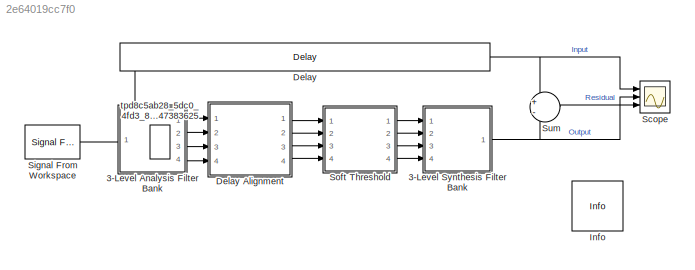
MODEL slx_2e64019cc7f0
KIND model
CONFIG AbsTol = auto
CONFIG EnableMultiTasking = off
CONFIG FixedStep = auto
CONFIG MaxStep = auto
CONFIG MinStep = auto
CONFIG RelTol = 1e-3
CONFIG SampleTimeConstraint = Unconstrained
CONFIG Solver = FixedStepDiscrete
CONFIG SolverName = FixedStepDiscrete
CONFIG StartTime = 0.0
CONFIG StopTime = 1024
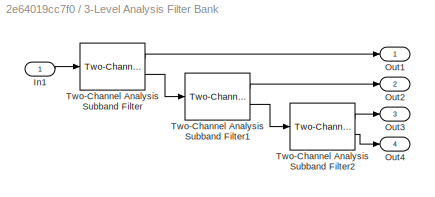
BLOCK [SubSystem] 3-Level Analysis Filter Bank
  Ports = [1, 4]
  RequestExecContextInheritance = off
  Variant = off
BLOCK [Inport] 3-Level Analysis Filter Bank/In1
  IconDisplay = Port number
BLOCK [Outport] 3-Level Analysis Filter Bank/Out1
  IconDisplay = Port number
BLOCK [Outport] 3-Level Analysis Filter Bank/Out2
  IconDisplay = Port number
  Port = 2
BLOCK [Outport] 3-Level Analysis Filter Bank/Out3
  IconDisplay = Port number
  Port = 3
BLOCK [Outport] 3-Level Analysis Filter Bank/Out4
  IconDisplay = Port number
  Port = 4
BLOCK [Reference] 3-Level Analysis Filter Bank/Two-Channel Analysis Subband Filter  REF=dspobslib/Two-Channel Analysis
Subband Filter
  Ports = [1, 2]
  SourceBlock = dspobslib/Two-Channel Analysis\nSubband Filter
  SourceType = Two-Channel Analysis Subband Filter
  UserDataPersistent = on
BLOCK [Reference] 3-Level Analysis Filter Bank/Two-Channel Analysis Subband Filter1  REF=dspobslib/Two-Channel Analysis
Subband Filter
  Ports = [1, 2]
  SourceBlock = dspobslib/Two-Channel Analysis\nSubband Filter
  SourceType = Two-Channel Analysis Subband Filter
  UserDataPersistent = on
BLOCK [Reference] 3-Level Analysis Filter Bank/Two-Channel Analysis Subband Filter2  REF=dspobslib/Two-Channel Analysis
Subband Filter
  Ports = [1, 2]
  SourceBlock = dspobslib/Two-Channel Analysis\nSubband Filter
  SourceType = Two-Channel Analysis Subband Filter
  UserDataPersistent = on
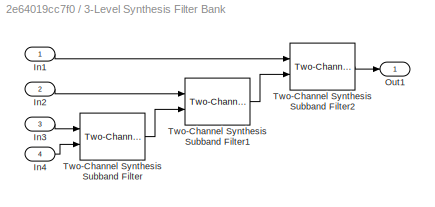
BLOCK [SubSystem] 3-Level Synthesis Filter Bank
  Ports = [4, 1]
  RequestExecContextInheritance = off
  Variant = off
BLOCK [Inport] 3-Level Synthesis Filter Bank/In1
  IconDisplay = Port number
BLOCK [Inport] 3-Level Synthesis Filter Bank/In2
  IconDisplay = Port number
  Port = 2
BLOCK [Inport] 3-Level Synthesis Filter Bank/In3
  IconDisplay = Port number
  Port = 3
BLOCK [Inport] 3-Level Synthesis Filter Bank/In4
  IconDisplay = Port number
  Port = 4
BLOCK [Outport] 3-Level Synthesis Filter Bank/Out1
  IconDisplay = Port number
BLOCK [Reference] 3-Level Synthesis Filter Bank/Two-Channel Synthesis Subband Filter  REF=dspobslib/Two-Channel Synthesis
Subband Filter
  Ports = [2, 1]
  SourceBlock = dspobslib/Two-Channel Synthesis\nSubband Filter
  SourceType = Two-Channel Synthesis Subband Filter
  UserDataPersistent = on
BLOCK [Reference] 3-Level Synthesis Filter Bank/Two-Channel Synthesis Subband Filter1  REF=dspobslib/Two-Channel Synthesis
Subband Filter
  Ports = [2, 1]
  SourceBlock = dspobslib/Two-Channel Synthesis\nSubband Filter
  SourceType = Two-Channel Synthesis Subband Filter
  UserDataPersistent = on
BLOCK [Reference] 3-Level Synthesis Filter Bank/Two-Channel Synthesis Subband Filter2  REF=dspobslib/Two-Channel Synthesis
Subband Filter
  Ports = [2, 1]
  SourceBlock = dspobslib/Two-Channel Synthesis\nSubband Filter
  SourceType = Two-Channel Synthesis Subband Filter
  UserDataPersistent = on
BLOCK [Delay] Delay
  DelayLength = 7*(length(lod)-1)
  InitialCondition = 0
  InputPortMap = u0
  InputProcessing = Columns as channels (frame based)
  Ports = [1, 1]
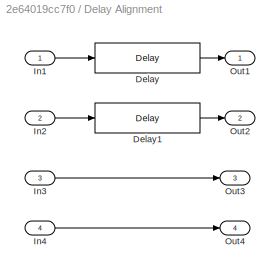
BLOCK [SubSystem] Delay Alignment
  Ports = [4, 4]
  RequestExecContextInheritance = off
  Variant = off
BLOCK [Delay] Delay Alignment/Delay
  DelayLength = 3*(length(lod)-1)
  InitialCondition = 0
  InputPortMap = u0
  InputProcessing = Columns as channels (frame based)
  Ports = [1, 1]
BLOCK [Delay] Delay Alignment/Delay1
  DelayLength = length(lod) - 1
  InitialCondition = 0
  InputPortMap = u0
  InputProcessing = Columns as channels (frame based)
  Ports = [1, 1]
BLOCK [Inport] Delay Alignment/In1
  IconDisplay = Port number
BLOCK [Inport] Delay Alignment/In2
  IconDisplay = Port number
  Port = 2
BLOCK [Inport] Delay Alignment/In3
  IconDisplay = Port number
  Port = 3
BLOCK [Inport] Delay Alignment/In4
  IconDisplay = Port number
  Port = 4
BLOCK [Outport] Delay Alignment/Out1
  IconDisplay = Port number
BLOCK [Outport] Delay Alignment/Out2
  IconDisplay = Port number
  Port = 2
BLOCK [Outport] Delay Alignment/Out3
  IconDisplay = Port number
  Port = 3
BLOCK [Outport] Delay Alignment/Out4
  IconDisplay = Port number
  Port = 4
BLOCK [Reference] Info  REF=dspmisc/Info
  Ports = []
  SourceBlock = dspmisc/Info
  SourceType = Info
BLOCK [Scope] Scope
  NumInputPorts = 3
  Ports = [3]
  ScopeSpecificationString = Simulink.scopes.TimeScopeBlockCfg('CurrentConfiguration', extmgr.ConfigurationSet(extmgr.Configuration('Core','General UI',true),extmgr.Configuration('Core','Source UI',true),extmgr.Configuration('Sources','WiredSimulink',true,'DataLoggingSaveFormat','StructureWithTime','DataLoggingLimitDataPoints',true,'DataLoggingDecimation','1','DataLoggingDecimateData',true),extmgr.Configuration('Visuals','Tim...<+5315ch>
BLOCK [Reference] Signal From Workspace  REF=dspsrcs4/Signal From
Workspace
  Ports = [0, 1]
  SourceBlock = dspsrcs4/Signal From\nWorkspace
  SourceType = Signal From Workspace
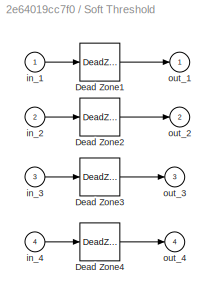
BLOCK [SubSystem] Soft Threshold
  Ports = [4, 4]
  RequestExecContextInheritance = off
  ShowPortLabels = none
  Variant = off
BLOCK [DeadZone] Soft Threshold/Dead Zone1
  LowerValue = -st(1)
  UpperValue = st(1)
  ZeroCross = off
BLOCK [DeadZone] Soft Threshold/Dead Zone2
  LowerValue = -st(2)
  UpperValue = st(2)
  ZeroCross = off
BLOCK [DeadZone] Soft Threshold/Dead Zone3
  LowerValue = -st(3)
  UpperValue = st(3)
  ZeroCross = off
BLOCK [DeadZone] Soft Threshold/Dead Zone4
  LowerValue = -st(4)
  UpperValue = st(4)
  ZeroCross = off
BLOCK [Inport] Soft Threshold/in_1
  IconDisplay = Port number
BLOCK [Inport] Soft Threshold/in_2
  IconDisplay = Port number
  Port = 2
BLOCK [Inport] Soft Threshold/in_3
  IconDisplay = Port number
  Port = 3
BLOCK [Inport] Soft Threshold/in_4
  IconDisplay = Port number
  Port = 4
BLOCK [Outport] Soft Threshold/out_1
  IconDisplay = Port number
BLOCK [Outport] Soft Threshold/out_2
  IconDisplay = Port number
  Port = 2
BLOCK [Outport] Soft Threshold/out_3
  IconDisplay = Port number
  Port = 3
BLOCK [Outport] Soft Threshold/out_4
  IconDisplay = Port number
  Port = 4
BLOCK [Sum] Sum
  IconShape = round
  Inputs = +-
  Ports = [2, 1]
BLOCK [FrameConversion] tpd8c5ab28_5dc0_4fd3_8a08_533c47383625
  InheritSamplingMode = off
  Ports = [1, 1]
LINE 3-Level Analysis Filter Bank/In1:1 -> 3-Level Analysis Filter Bank/Two-Channel Analysis Subband Filter:1
LINE 3-Level Analysis Filter Bank/Two-Channel Analysis Subband Filter1:1 -> 3-Level Analysis Filter Bank/Out2:1
LINE 3-Level Analysis Filter Bank/Two-Channel Analysis Subband Filter1:2 -> 3-Level Analysis Filter Bank/Two-Channel Analysis Subband Filter2:1
LINE 3-Level Analysis Filter Bank/Two-Channel Analysis Subband Filter2:1 -> 3-Level Analysis Filter Bank/Out3:1
LINE 3-Level Analysis Filter Bank/Two-Channel Analysis Subband Filter2:2 -> 3-Level Analysis Filter Bank/Out4:1
LINE 3-Level Analysis Filter Bank/Two-Channel Analysis Subband Filter:1 -> 3-Level Analysis Filter Bank/Out1:1
LINE 3-Level Analysis Filter Bank/Two-Channel Analysis Subband Filter:2 -> 3-Level Analysis Filter Bank/Two-Channel Analysis Subband Filter1:1
LINE 3-Level Analysis Filter Bank:1 -> Delay Alignment:1
LINE 3-Level Analysis Filter Bank:2 -> Delay Alignment:2
LINE 3-Level Analysis Filter Bank:3 -> Delay Alignment:3
LINE 3-Level Analysis Filter Bank:4 -> Delay Alignment:4
LINE 3-Level Synthesis Filter Bank/In1:1 -> 3-Level Synthesis Filter Bank/Two-Channel Synthesis Subband Filter2:1
LINE 3-Level Synthesis Filter Bank/In2:1 -> 3-Level Synthesis Filter Bank/Two-Channel Synthesis Subband Filter1:1
LINE 3-Level Synthesis Filter Bank/In3:1 -> 3-Level Synthesis Filter Bank/Two-Channel Synthesis Subband Filter:1
LINE 3-Level Synthesis Filter Bank/In4:1 -> 3-Level Synthesis Filter Bank/Two-Channel Synthesis Subband Filter:2
LINE 3-Level Synthesis Filter Bank/Two-Channel Synthesis Subband Filter1:1 -> 3-Level Synthesis Filter Bank/Two-Channel Synthesis Subband Filter2:2
LINE 3-Level Synthesis Filter Bank/Two-Channel Synthesis Subband Filter2:1 -> 3-Level Synthesis Filter Bank/Out1:1
LINE 3-Level Synthesis Filter Bank/Two-Channel Synthesis Subband Filter:1 -> 3-Level Synthesis Filter Bank/Two-Channel Synthesis Subband Filter1:2
NET 3-Level Synthesis Filter Bank:1 -> Scope:2, Sum:2
LINE Delay Alignment/Delay1:1 -> Delay Alignment/Out2:1
LINE Delay Alignment/Delay:1 -> Delay Alignment/Out1:1
LINE Delay Alignment/In1:1 -> Delay Alignment/Delay:1
LINE Delay Alignment/In2:1 -> Delay Alignment/Delay1:1
LINE Delay Alignment/In3:1 -> Delay Alignment/Out3:1
LINE Delay Alignment/In4:1 -> Delay Alignment/Out4:1
LINE Delay Alignment:1 -> Soft Threshold:1
LINE Delay Alignment:2 -> Soft Threshold:2
LINE Delay Alignment:3 -> Soft Threshold:3
LINE Delay Alignment:4 -> Soft Threshold:4
NET Delay:1 -> Scope:1, Sum:1
LINE Signal From Workspace:1 -> tpd8c5ab28_5dc0_4fd3_8a08_533c47383625:1
LINE Soft Threshold/Dead Zone1:1 -> Soft Threshold/out_1:1
LINE Soft Threshold/Dead Zone2:1 -> Soft Threshold/out_2:1
LINE Soft Threshold/Dead Zone3:1 -> Soft Threshold/out_3:1
LINE Soft Threshold/Dead Zone4:1 -> Soft Threshold/out_4:1
LINE Soft Threshold/in_1:1 -> Soft Threshold/Dead Zone1:1
LINE Soft Threshold/in_2:1 -> Soft Threshold/Dead Zone2:1
LINE Soft Threshold/in_3:1 -> Soft Threshold/Dead Zone3:1
LINE Soft Threshold/in_4:1 -> Soft Threshold/Dead Zone4:1
LINE Soft Threshold:1 -> 3-Level Synthesis Filter Bank:1
LINE Soft Threshold:2 -> 3-Level Synthesis Filter Bank:2
LINE Soft Threshold:3 -> 3-Level Synthesis Filter Bank:3
LINE Soft Threshold:4 -> 3-Level Synthesis Filter Bank:4
LINE Sum:1 -> Scope:3
NET tpd8c5ab28_5dc0_4fd3_8a08_533c47383625:1 -> 3-Level Analysis Filter Bank:1, Delay:1
note: NET lines group one-source signal fan-out (src -> all destinations, sorted); 1:1 wires keep LINE
